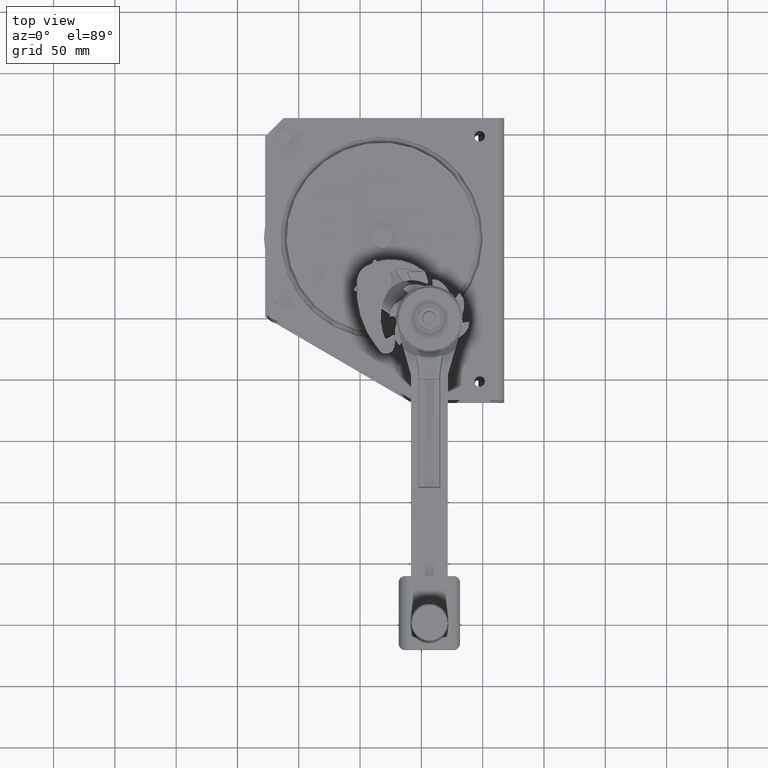
[diagram: clean part render]
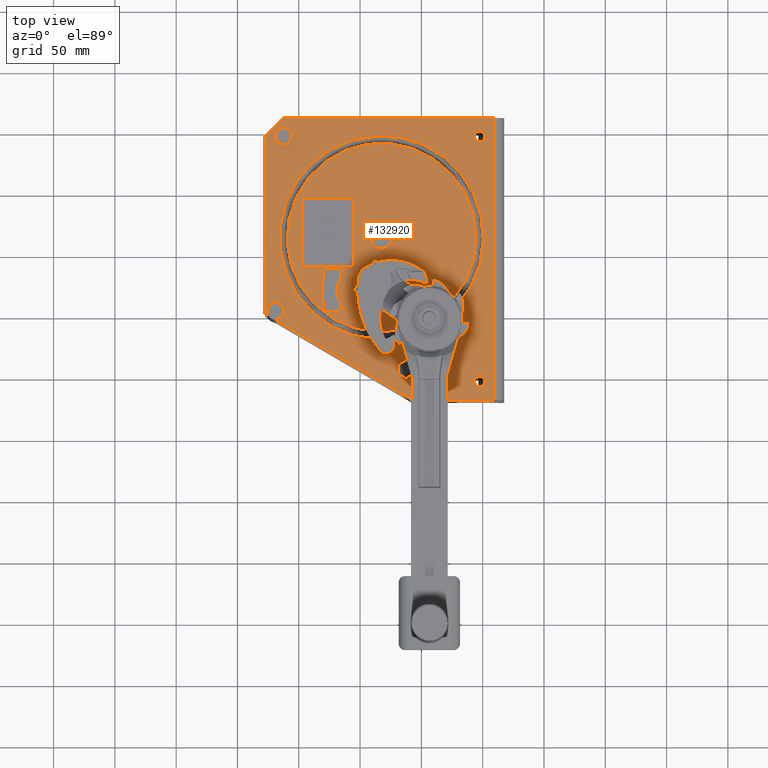
[diagram: same view with one face highlighted and labeled with its STEP entity id]
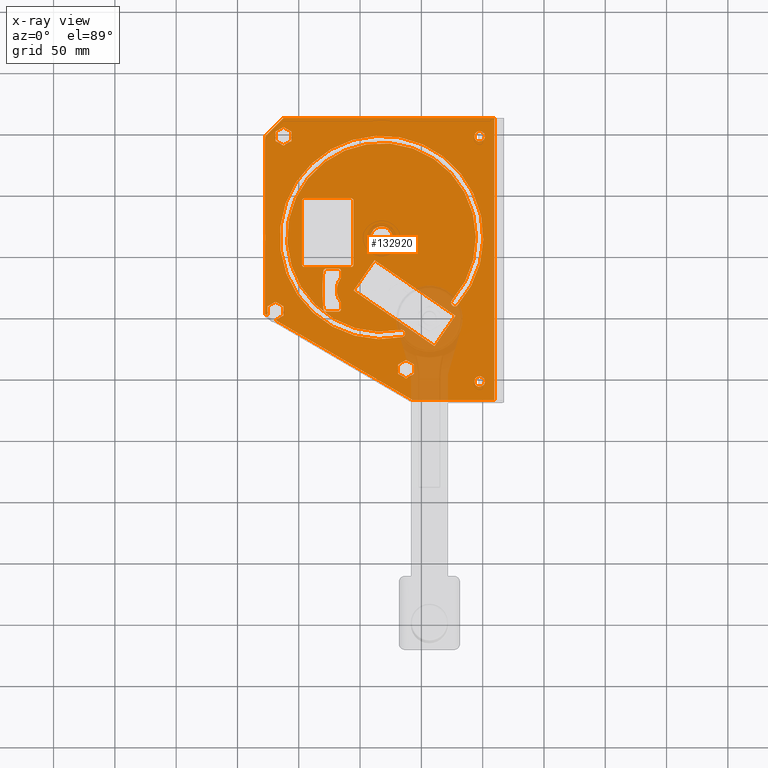
[diagram: x-ray of the same camera — body ghosted, the highlighted face saturated]
A machine part, top view. The second image highlights one B-rep face of the part: STEP entity #132920.
The next image is the same camera in x-ray: the body ghosted, the highlighted face saturated — about 8% of this face is hidden behind the body in this view.
In plain terms, the highlighted planar face has unit normal (0, 0, 1).
Its self-contained STEP definition (entity closure, byte-faithful):
#119940=CARTESIAN_POINT('',(-170.468345091884,-128.418201438849,-25.));
#119950=VERTEX_POINT('',#119940);
#119980=CARTESIAN_POINT('',(-170.468345091884,-128.418201438849,-180.));
#119990=DIRECTION('',(0.,0.,1.));
#120000=VECTOR('',#119990,1.);
#120010=LINE('',#119980,#120000);
#120020=CARTESIAN_POINT('',(-170.468345091884,-128.418201438849,-92.));
#120030=VERTEX_POINT('',#120020);
#120040=EDGE_CURVE('',#120030,#119950,#120010,.T.);
#121800=CARTESIAN_POINT('',(-170.468345091884,-197.165424689116,80.));
#121810=VERTEX_POINT('',#121800);
#121840=CARTESIAN_POINT('',(-170.468345091884,114.896997945725,
620.507971136578));
#121850=DIRECTION('',(0.,-0.5,-0.866025403784439));
#121860=VECTOR('',#121850,1.);
#121870=LINE('',#121840,#121860);
#121880=CARTESIAN_POINT('',(-170.468345091884,-193.436136317757,
86.4593169352704));
#121890=VERTEX_POINT('',#121880);
#121900=EDGE_CURVE('',#121890,#121810,#121870,.T.);
#122560=CARTESIAN_POINT('',(-170.468345091884,-197.251534772182,
92.9999999999998));
#122570=VERTEX_POINT('',#122560);
#124190=CARTESIAN_POINT('',(-170.468345091884,-347.314590512988,93.));
#124200=DIRECTION('',(0.,1.,-3.55008495947735E-16));
#124210=VECTOR('',#124200,1.);
#124220=LINE('',#124190,#124210);
#124230=CARTESIAN_POINT('',(-170.468345091884,-204.670978188582,93.));
#124240=VERTEX_POINT('',#124230);
#124250=EDGE_CURVE('',#124240,#122570,#124220,.T.);
#125190=CARTESIAN_POINT('',(-170.468345091884,-208.423754938314,
86.4999999999999));
#125200=VERTEX_POINT('',#125190);
#125230=CARTESIAN_POINT('',(-170.468345091884,-516.733400823423,
620.507971136578));
#125240=DIRECTION('',(0.,-0.5,0.866025403784439));
#125250=VECTOR('',#125240,1.);
#125260=LINE('',#125230,#125250);
#125270=CARTESIAN_POINT('',(-170.468345091884,-204.670978188582,80.));
#125280=VERTEX_POINT('',#125270);
#125290=EDGE_CURVE('',#125280,#125200,#125260,.T.);
#127090=CARTESIAN_POINT('',(-170.468345091884,-347.314590512988,80.));
#127100=DIRECTION('',(0.,-1.,3.55008495947735E-16));
#127110=VECTOR('',#127100,1.);
#127120=LINE('',#127090,#127110);
#127130=EDGE_CURVE('',#121810,#125280,#127120,.T.);
#128110=CARTESIAN_POINT('',(-170.468345091884,99.885890946795,
620.507971136578));
#128120=DIRECTION('',(0.,0.5,0.866025403784439));
#128130=VECTOR('',#128120,1.);
#128140=LINE('',#128110,#128130);
#128150=EDGE_CURVE('',#125200,#124240,#128140,.T.);
#128370=CARTESIAN_POINT('',(-170.468345091884,-169.166600276766,
-32.3566740944651));
#128380=DIRECTION('',(-1.,-0.,-0.));
#128390=DIRECTION('',(0.,0.,-1.));
#128400=AXIS2_PLACEMENT_3D('',#128370,#128380,#128390);
#128410=PLANE('',#128400);
#128420=CARTESIAN_POINT('',(-170.468345091884,-530.721204492118,
620.507971136578));
#128430=DIRECTION('',(0.,-0.5,0.866025403784439));
#128440=VECTOR('',#128430,1.);
#128450=LINE('',#128420,#128440);
#128460=CARTESIAN_POINT('',(-170.468345091884,-157.170978188582,-26.5));
#128470=VERTEX_POINT('',#128460);
#128480=CARTESIAN_POINT('',(-170.468345091884,-160.923754938314,-20.));
#128490=VERTEX_POINT('',#128480);
#128500=EDGE_CURVE('',#128470,#128490,#128450,.T.);
#128510=ORIENTED_EDGE('',*,*,#128500,.F.);
#128520=CARTESIAN_POINT('',(-170.468345091884,208.87369461549,
620.507971136578));
#128530=DIRECTION('',(0.,0.5,0.866025403784439));
#128540=VECTOR('',#128530,1.);
#128550=LINE('',#128520,#128540);
#128560=CARTESIAN_POINT('',(-170.468345091884,-157.170978188582,-13.5));
#128570=VERTEX_POINT('',#128560);
#128580=EDGE_CURVE('',#128490,#128570,#128550,.T.);
#128590=ORIENTED_EDGE('',*,*,#128580,.F.);
#128600=CARTESIAN_POINT('',(-170.468345091884,-347.314590512988,
-13.4999999999999));
#128610=DIRECTION('',(0.,1.,-3.55008495947735E-16));
#128620=VECTOR('',#128610,1.);
#128630=LINE('',#128600,#128620);
#128640=CARTESIAN_POINT('',(-170.468345091884,-149.665424689116,-13.5));
#128650=VERTEX_POINT('',#128640);
#128660=EDGE_CURVE('',#128570,#128650,#128630,.T.);
#128670=ORIENTED_EDGE('',*,*,#128660,.F.);
#128680=CARTESIAN_POINT('',(-170.468345091884,-515.710097493188,
620.507971136578));
#128690=DIRECTION('',(0.,0.5,-0.866025403784439));
#128700=VECTOR('',#128690,1.);
#128710=LINE('',#128680,#128700);
#128720=CARTESIAN_POINT('',(-170.468345091884,-145.912647939384,
-20.0000000000001));
#128730=VERTEX_POINT('',#128720);
#128740=EDGE_CURVE('',#128650,#128730,#128710,.T.);
#128750=ORIENTED_EDGE('',*,*,#128740,.F.);
#128760=CARTESIAN_POINT('',(-170.468345091884,223.884801614421,
620.507971136578));
#128770=DIRECTION('',(0.,-0.5,-0.866025403784439));
#128780=VECTOR('',#128770,1.);
#128790=LINE('',#128760,#128780);
#128800=CARTESIAN_POINT('',(-170.468345091884,-149.665424689116,-26.5));
#128810=VERTEX_POINT('',#128800);
#128820=EDGE_CURVE('',#128730,#128810,#128790,.T.);
#128830=ORIENTED_EDGE('',*,*,#128820,.F.);
#128840=CARTESIAN_POINT('',(-170.468345091884,-347.314590512988,
-26.4999999999999));
#128850=DIRECTION('',(0.,-1.,3.55008495947735E-16));
#128860=VECTOR('',#128850,1.);
#128870=LINE('',#128840,#128860);
#128880=EDGE_CURVE('',#128810,#128470,#128870,.T.);
#128890=ORIENTED_EDGE('',*,*,#128880,.F.);
#128900=EDGE_LOOP('',(#128890,#128830,#128750,#128670,#128590,#128510));
#128910=FACE_BOUND('',#128900,.T.);
#128920=CARTESIAN_POINT('',(-170.468345091884,-260.918201438849,0.));
#128930=DIRECTION('',(-1.,0.,0.));
#128940=DIRECTION('',(0.,0.,-1.));
#128950=AXIS2_PLACEMENT_3D('',#128920,#128930,#128940);
#128960=CIRCLE('',#128950,9.);
#128970=CARTESIAN_POINT('',(-170.468345091884,-260.918201438849,9.));
#128980=VERTEX_POINT('',#128970);
#128990=CARTESIAN_POINT('',(-170.468345091884,-260.918201438849,-9.));
#129000=VERTEX_POINT('',#128990);
#129010=EDGE_CURVE('',#128980,#129000,#128960,.T.);
#129020=ORIENTED_EDGE('',*,*,#129010,.F.);
#129030=EDGE_CURVE('',#129000,#128980,#128960,.T.);
#129040=ORIENTED_EDGE('',*,*,#129030,.F.);
#129050=EDGE_LOOP('',(#129040,#129020));
#129060=FACE_BOUND('',#129050,.T.);
#129070=CARTESIAN_POINT('',(-170.468345091884,-260.918201438849,0.));
#129080=DIRECTION('',(-1.,0.,0.));
#129090=DIRECTION('',(0.,0.,-1.));
#129100=AXIS2_PLACEMENT_3D('',#129070,#129080,#129090);
#129110=CIRCLE('',#129100,83.);
#129120=CARTESIAN_POINT('',(-170.468345091884,-205.686590010033,
-61.9553799034138));
#129130=VERTEX_POINT('',#129120);
#129140=CARTESIAN_POINT('',(-170.468345091884,-179.647462826969,
-16.8542886375992));
#129150=VERTEX_POINT('',#129140);
#129160=EDGE_CURVE('',#129130,#129150,#129110,.T.);
#129170=ORIENTED_EDGE('',*,*,#129160,.F.);
#129180=CARTESIAN_POINT('',(-170.468345091884,-182.584959403302,
-16.2450974820233));
#129190=DIRECTION('',(-1.,0.,0.));
#129200=DIRECTION('',(0.,0.,-1.));
#129210=AXIS2_PLACEMENT_3D('',#129180,#129190,#129200);
#129220=CIRCLE('',#129210,3.);
#129230=CARTESIAN_POINT('',(-170.468345091884,-185.522455979635,
-15.6359063264474));
#129240=VERTEX_POINT('',#129230);
#129250=EDGE_CURVE('',#129150,#129240,#129220,.T.);
#129260=ORIENTED_EDGE('',*,*,#129250,.F.);
#129270=CARTESIAN_POINT('',(-170.468345091884,-260.918201438849,0.));
#129280=DIRECTION('',(-1.,0.,0.));
#129290=DIRECTION('',(0.,0.,-1.));
#129300=AXIS2_PLACEMENT_3D('',#129270,#129280,#129290);
#129310=CIRCLE('',#129300,77.);
#129320=CARTESIAN_POINT('',(-170.468345091884,-209.679236619345,
-57.4766777417212));
#129330=VERTEX_POINT('',#129320);
#129340=EDGE_CURVE('',#129330,#129240,#129310,.T.);
#129350=ORIENTED_EDGE('',*,*,#129340,.T.);
#129360=CARTESIAN_POINT('',(-170.468345091884,-207.682913314689,
-59.7160288225675));
#129370=DIRECTION('',(-1.,0.,0.));
#129380=DIRECTION('',(0.,0.,-1.));
#129390=AXIS2_PLACEMENT_3D('',#129360,#129370,#129380);
#129400=CIRCLE('',#129390,3.);
#129410=EDGE_CURVE('',#129330,#129130,#129400,.T.);
#129420=ORIENTED_EDGE('',*,*,#129410,.F.);
#129430=EDGE_LOOP('',(#129420,#129350,#129260,#129170));
#129440=FACE_BOUND('',#129430,.T.);
#129450=CARTESIAN_POINT('',(-170.468345091884,-347.314590512988,
-163.552414570162));
#129460=DIRECTION('',(0.,-0.82393487400873,-0.566684500751713));
#129470=VECTOR('',#129460,1.);
#129480=LINE('',#129450,#129470);
#129490=CARTESIAN_POINT('',(-170.468345091884,-172.291263276098,
-43.1751736693352));
#129500=VERTEX_POINT('',#129490);
#129510=CARTESIAN_POINT('',(-170.468345091884,-197.00930949636,
-60.1757086918866));
#129520=VERTEX_POINT('',#129510);
#129530=EDGE_CURVE('',#129500,#129520,#129480,.T.);
#129540=ORIENTED_EDGE('',*,*,#129530,.F.);
#129550=CARTESIAN_POINT('',(-170.468345091884,-665.168751997814,
620.507971136578));
#129560=DIRECTION('',(0.,-0.566684500751713,0.82393487400873));
#129570=VECTOR('',#129560,1.);
#129580=LINE('',#129550,#129570);
#129590=CARTESIAN_POINT('',(-170.468345091884,-242.344069556497,
5.73908122881176));
#129600=VERTEX_POINT('',#129590);
#129610=EDGE_CURVE('',#129520,#129600,#129580,.T.);
#129620=ORIENTED_EDGE('',*,*,#129610,.F.);
#129630=CARTESIAN_POINT('',(-170.468345091884,-347.314590512988,
-66.4573618862374));
#129640=DIRECTION('',(0.,0.82393487400873,0.566684500751713));
#129650=VECTOR('',#129640,1.);
#129660=LINE('',#129630,#129650);
#129670=CARTESIAN_POINT('',(-170.468345091884,-217.626023336235,
22.7396162513631));
#129680=VERTEX_POINT('',#129670);
#129690=EDGE_CURVE('',#129600,#129680,#129660,.T.);
#129700=ORIENTED_EDGE('',*,*,#129690,.F.);
#129710=CARTESIAN_POINT('',(-170.468345091884,-628.758107241342,
620.507971136578));
#129720=DIRECTION('',(0.,0.566684500751713,-0.82393487400873));
#129730=VECTOR('',#129720,1.);
#129740=LINE('',#129710,#129730);
#129750=EDGE_CURVE('',#129680,#129500,#129740,.T.);
#129760=ORIENTED_EDGE('',*,*,#129750,.F.);
#129770=EDGE_LOOP('',(#129760,#129700,#129620,#129540));
#129780=FACE_BOUND('',#129770,.T.);
#129790=CARTESIAN_POINT('',(-170.468345091884,-343.418201438849,-80.));
#129800=DIRECTION('',(-1.,0.,0.));
#129810=DIRECTION('',(0.,0.,-1.));
#129820=AXIS2_PLACEMENT_3D('',#129790,#129800,#129810);
#129830=CIRCLE('',#129820,4.25);
#129840=CARTESIAN_POINT('',(-170.468345091884,-343.418201438849,-75.75))
;
#129850=VERTEX_POINT('',#129840);
#129860=CARTESIAN_POINT('',(-170.468345091884,-343.418201438849,-84.25))
;
#129870=VERTEX_POINT('',#129860);
#129880=EDGE_CURVE('',#129850,#129870,#129830,.T.);
#129890=ORIENTED_EDGE('',*,*,#129880,.F.);
#129900=EDGE_CURVE('',#129870,#129850,#129830,.T.);
#129910=ORIENTED_EDGE('',*,*,#129900,.F.);
#129920=EDGE_LOOP('',(#129910,#129890));
#129930=FACE_BOUND('',#129920,.T.);
#129940=CARTESIAN_POINT('',(-170.468345091884,-347.314590512988,73.5));
#129950=DIRECTION('',(0.,-1.,3.55008495947735E-16));
#129960=VECTOR('',#129950,1.);
#129970=LINE('',#129940,#129960);
#129980=CARTESIAN_POINT('',(-170.468345091884,-339.665424689116,73.5));
#129990=VERTEX_POINT('',#129980);
#130000=CARTESIAN_POINT('',(-170.468345091884,-347.170978188582,73.5));
#130010=VERTEX_POINT('',#130000);
#130020=EDGE_CURVE('',#129990,#130010,#129970,.T.);
#130030=ORIENTED_EDGE('',*,*,#130020,.F.);
#130040=CARTESIAN_POINT('',(-170.468345091884,-662.986177573156,
620.507971136578));
#130050=DIRECTION('',(0.,-0.5,0.866025403784439));
#130060=VECTOR('',#130050,1.);
#130070=LINE('',#130040,#130060);
#130080=CARTESIAN_POINT('',(-170.468345091884,-350.923754938314,
79.9999999999999));
#130090=VERTEX_POINT('',#130080);
#130100=EDGE_CURVE('',#130010,#130090,#130070,.T.);
#130110=ORIENTED_EDGE('',*,*,#130100,.F.);
#130120=CARTESIAN_POINT('',(-170.468345091884,-38.8613323034725,
620.507971136578));
#130130=DIRECTION('',(0.,0.5,0.866025403784439));
#130140=VECTOR('',#130130,1.);
#130150=LINE('',#130120,#130140);
#130160=CARTESIAN_POINT('',(-170.468345091884,-347.170978188582,86.5));
#130170=VERTEX_POINT('',#130160);
#130180=EDGE_CURVE('',#130090,#130170,#130150,.T.);
#130190=ORIENTED_EDGE('',*,*,#130180,.F.);
#130200=CARTESIAN_POINT('',(-170.468345091884,-347.314590512988,86.5));
#130210=DIRECTION('',(0.,1.,-3.55008495947735E-16));
#130220=VECTOR('',#130210,1.);
#130230=LINE('',#130200,#130220);
#130240=CARTESIAN_POINT('',(-170.468345091884,-339.665424689116,86.5));
#130250=VERTEX_POINT('',#130240);
#130260=EDGE_CURVE('',#130170,#130250,#130230,.T.);
#130270=ORIENTED_EDGE('',*,*,#130260,.F.);
#130280=CARTESIAN_POINT('',(-170.468345091884,-647.975070574225,
620.507971136578));
#130290=DIRECTION('',(0.,0.5,-0.866025403784439));
#130300=VECTOR('',#130290,1.);
#130310=LINE('',#130280,#130300);
#130320=CARTESIAN_POINT('',(-170.468345091884,-335.912647939384,80.));
#130330=VERTEX_POINT('',#130320);
#130340=EDGE_CURVE('',#130250,#130330,#130310,.T.);
#130350=ORIENTED_EDGE('',*,*,#130340,.F.);
#130360=CARTESIAN_POINT('',(-170.468345091884,-23.850225304542,
620.507971136578));
#130370=DIRECTION('',(0.,-0.5,-0.866025403784439));
#130380=VECTOR('',#130370,1.);
#130390=LINE('',#130360,#130380);
#130400=EDGE_CURVE('',#130330,#129990,#130390,.T.);
#130410=ORIENTED_EDGE('',*,*,#130400,.F.);
#130420=EDGE_LOOP('',(#130410,#130350,#130270,#130190,#130110,#130030));
#130430=FACE_BOUND('',#130420,.T.);
#130440=ORIENTED_EDGE('',*,*,#120040,.F.);
#130450=CARTESIAN_POINT('',(-170.468345091884,-198.418201438849,95.));
#130460=DIRECTION('',(0.,0.503871025524086,-0.863778900898434));
#130470=VECTOR('',#130460,1.);
#130480=LINE('',#130450,#130470);
#130490=EDGE_CURVE('',#121890,#119950,#130480,.T.);
#130500=ORIENTED_EDGE('',*,*,#130490,.T.);
#130510=ORIENTED_EDGE('',*,*,#121900,.F.);
#130520=ORIENTED_EDGE('',*,*,#127130,.F.);
#130530=ORIENTED_EDGE('',*,*,#125290,.F.);
#130540=ORIENTED_EDGE('',*,*,#128150,.F.);
#130550=ORIENTED_EDGE('',*,*,#124250,.F.);
#130560=CARTESIAN_POINT('',(-170.468345091884,-198.418201438849,
94.9999999999997));
#130570=VERTEX_POINT('',#130560);
#130580=EDGE_CURVE('',#130570,#122570,#130480,.T.);
#130590=ORIENTED_EDGE('',*,*,#130580,.T.);
#130600=CARTESIAN_POINT('',(-170.468345091884,-343.418201438849,95.));
#130610=DIRECTION('',(0.,1.,0.));
#130620=VECTOR('',#130610,1.);
#130630=LINE('',#130600,#130620);
#130640=CARTESIAN_POINT('',(-170.468345091884,-343.418201438849,95.));
#130650=VERTEX_POINT('',#130640);
#130660=EDGE_CURVE('',#130650,#130570,#130630,.T.);
#130670=ORIENTED_EDGE('',*,*,#130660,.T.);
#130680=CARTESIAN_POINT('',(-170.468345091884,-343.418201438849,95.));
#130690=DIRECTION('',(0.,-0.707106781186548,-0.707106781186548));
#130700=VECTOR('',#130690,1.);
#130710=LINE('',#130680,#130700);
#130720=CARTESIAN_POINT('',(-170.468345091884,-358.418201438849,80.));
#130730=VERTEX_POINT('',#130720);
#130740=EDGE_CURVE('',#130650,#130730,#130710,.T.);
#130750=ORIENTED_EDGE('',*,*,#130740,.F.);
#130760=CARTESIAN_POINT('',(-170.468345091884,-358.418201438849,80.));
#130770=DIRECTION('',(0.,0.,-1.));
#130780=VECTOR('',#130770,1.);
#130790=LINE('',#130760,#130780);
#130800=CARTESIAN_POINT('',(-170.468345091884,-358.418201438849,-92.));
#130810=VERTEX_POINT('',#130800);
#130820=EDGE_CURVE('',#130730,#130810,#130790,.T.);
#130830=ORIENTED_EDGE('',*,*,#130820,.F.);
#130840=CARTESIAN_POINT('',(-170.468345091884,-347.314590512988,-92.));
#130850=DIRECTION('',(0.,-1.,0.));
#130860=VECTOR('',#130850,1.);
#130870=LINE('',#130840,#130860);
#130880=EDGE_CURVE('',#120030,#130810,#130870,.T.);
#130890=ORIENTED_EDGE('',*,*,#130880,.T.);
#130900=EDGE_LOOP('',(#130890,#130830,#130750,#130670,#130590,#130550,
#130540,#130530,#130520,#130510,#130500,#130440));
#130910=FACE_OUTER_BOUND('',#130900,.T.);
#130920=CARTESIAN_POINT('',(-170.468345091884,-143.418201438849,-80.));
#130930=DIRECTION('',(-1.,0.,0.));
#130940=DIRECTION('',(0.,0.,-1.));
#130950=AXIS2_PLACEMENT_3D('',#130920,#130930,#130940);
#130960=CIRCLE('',#130950,4.25);
#130970=CARTESIAN_POINT('',(-170.468345091884,-143.418201438849,-75.75))
;
#130980=VERTEX_POINT('',#130970);
#130990=CARTESIAN_POINT('',(-170.468345091884,-143.418201438849,-84.25))
;
#131000=VERTEX_POINT('',#130990);
#131010=EDGE_CURVE('',#130980,#131000,#130960,.T.);
#131020=ORIENTED_EDGE('',*,*,#131010,.F.);
#131030=EDGE_CURVE('',#131000,#130980,#130960,.T.);
#131040=ORIENTED_EDGE('',*,*,#131030,.F.);
#131050=EDGE_LOOP('',(#131040,#131020));
#131060=FACE_BOUND('',#131050,.T.);
#131070=CARTESIAN_POINT('',(-170.468345091884,0.,22.8706771463028));
#131080=DIRECTION('',(0.,-1.,7.7715611723761E-16));
#131090=VECTOR('',#131080,1.);
#131100=LINE('',#131070,#131090);
#131110=CARTESIAN_POINT('',(-170.468345091884,-238.882809704928,
22.870677146303));
#131120=VERTEX_POINT('',#131110);
#131130=CARTESIAN_POINT('',(-170.468345091884,-290.882809704928,
22.8706771463031));
#131140=VERTEX_POINT('',#131130);
#131150=EDGE_CURVE('',#131120,#131140,#131100,.T.);
#131160=ORIENTED_EDGE('',*,*,#131150,.F.);
#131170=CARTESIAN_POINT('',(-170.468345091884,-290.882809704928,
24.8706771463031));
#131180=DIRECTION('',(-1.,-1.17755929470743E-16,3.52818340432267E-17));
#131190=DIRECTION('',(3.52818340432266E-17,7.21644966006352E-16,1.));
#131200=AXIS2_PLACEMENT_3D('',#131170,#131180,#131190);
#131210=CIRCLE('',#131200,2.);
#131220=CARTESIAN_POINT('',(-170.468345091884,-292.882809704928,
24.8706771463031));
#131230=VERTEX_POINT('',#131220);
#131240=EDGE_CURVE('',#131140,#131230,#131210,.T.);
#131250=ORIENTED_EDGE('',*,*,#131240,.F.);
#131260=CARTESIAN_POINT('',(-170.468345091884,-292.882809704928,0.));
#131270=DIRECTION('',(0.,-7.21644966006352E-16,-1.));
#131280=VECTOR('',#131270,1.);
#131290=LINE('',#131260,#131280);
#131300=CARTESIAN_POINT('',(-170.468345091884,-292.882809704928,
62.870677146303));
#131310=VERTEX_POINT('',#131300);
#131320=EDGE_CURVE('',#131310,#131230,#131290,.T.);
#131330=ORIENTED_EDGE('',*,*,#131320,.T.);
#131340=CARTESIAN_POINT('',(-170.468345091884,-290.882809704928,
62.870677146303));
#131350=DIRECTION('',(1.,1.17755929470743E-16,-3.52818340432267E-17));
#131360=DIRECTION('',(-3.52818340432266E-17,-7.21644966006352E-16,-1.));
#131370=AXIS2_PLACEMENT_3D('',#131340,#131350,#131360);
#131380=CIRCLE('',#131370,2.);
#131390=CARTESIAN_POINT('',(-170.468345091884,-290.882809704928,
64.870677146303));
#131400=VERTEX_POINT('',#131390);
#131410=EDGE_CURVE('',#131400,#131310,#131380,.T.);
#131420=ORIENTED_EDGE('',*,*,#131410,.T.);
#131430=CARTESIAN_POINT('',(-170.468345091884,0.,64.8706771463032));
#131440=DIRECTION('',(0.,1.,5.55111512312578E-16));
#131450=VECTOR('',#131440,1.);
#131460=LINE('',#131430,#131450);
#131470=CARTESIAN_POINT('',(-170.468345091884,-238.882809704928,
64.870677146303));
#131480=VERTEX_POINT('',#131470);
#131490=EDGE_CURVE('',#131400,#131480,#131460,.T.);
#131500=ORIENTED_EDGE('',*,*,#131490,.F.);
#131510=CARTESIAN_POINT('',(-170.468345091884,-238.882809704928,
62.870677146303));
#131520=DIRECTION('',(1.,1.17755929470743E-16,-3.52818340432267E-17));
#131530=DIRECTION('',(-3.52818340432266E-17,-7.21644966006352E-16,-1.));
#131540=AXIS2_PLACEMENT_3D('',#131510,#131520,#131530);
#131550=CIRCLE('',#131540,2.);
#131560=CARTESIAN_POINT('',(-170.468345091884,-236.882809704928,
62.870677146303));
#131570=VERTEX_POINT('',#131560);
#131580=EDGE_CURVE('',#131570,#131480,#131550,.T.);
#131590=ORIENTED_EDGE('',*,*,#131580,.T.);
#131600=CARTESIAN_POINT('',(-170.468345091884,-236.882809704928,0.));
#131610=DIRECTION('',(0.,-1.66533453693773E-16,-1.));
#131620=VECTOR('',#131610,1.);
#131630=LINE('',#131600,#131620);
#131640=CARTESIAN_POINT('',(-170.468345091884,-236.882809704928,
24.870677146303));
#131650=VERTEX_POINT('',#131640);
#131660=EDGE_CURVE('',#131570,#131650,#131630,.T.);
#131670=ORIENTED_EDGE('',*,*,#131660,.F.);
#131680=CARTESIAN_POINT('',(-170.468345091884,-238.882809704928,
24.870677146303));
#131690=DIRECTION('',(1.,1.17755929470743E-16,-3.52818340432267E-17));
#131700=DIRECTION('',(-3.52818340432266E-17,-7.21644966006352E-16,-1.));
#131710=AXIS2_PLACEMENT_3D('',#131680,#131690,#131700);
#131720=CIRCLE('',#131710,2.);
#131730=EDGE_CURVE('',#131120,#131650,#131720,.T.);
#131740=ORIENTED_EDGE('',*,*,#131730,.T.);
#131750=EDGE_LOOP('',(#131740,#131670,#131590,#131500,#131420,#131330,
#131250,#131160));
#131760=FACE_BOUND('',#131750,.T.);
#131770=CARTESIAN_POINT('',(-170.468345091884,-217.510222251764,
-116.445635685855));
#131780=DIRECTION('',(-1.,0.,2.73691106313441E-48));
#131790=DIRECTION('',(0.,-1.,0.));
#131800=AXIS2_PLACEMENT_3D('',#131770,#131780,#131790);
#131810=CIRCLE('',#131800,164.541232103691);
#131820=CARTESIAN_POINT('',(-170.468345091884,-217.943680607039,
48.0950254774424));
#131830=VERTEX_POINT('',#131820);
#131840=CARTESIAN_POINT('',(-170.468345091884,-202.252113032295,
47.3866174429095));
#131850=VERTEX_POINT('',#131840);
#131860=EDGE_CURVE('',#131830,#131850,#131810,.T.);
#131870=ORIENTED_EDGE('',*,*,#131860,.F.);
#131880=CARTESIAN_POINT('',(-170.468345091884,-202.443680607077,
45.3958131169417));
#131890=DIRECTION('',(-1.,0.,2.73691106313441E-48));
#131900=DIRECTION('',(0.,-1.,0.));
#131910=AXIS2_PLACEMENT_3D('',#131880,#131890,#131900);
#131920=CIRCLE('',#131910,1.99999999999999);
#131930=CARTESIAN_POINT('',(-170.468345091884,-200.443680607077,
45.3958131169418));
#131940=VERTEX_POINT('',#131930);
#131950=EDGE_CURVE('',#131850,#131940,#131920,.T.);
#131960=ORIENTED_EDGE('',*,*,#131950,.F.);
#131970=CARTESIAN_POINT('',(-170.468345091884,-200.443680607077,0.));
#131980=DIRECTION('',(0.,0.,1.));
#131990=VECTOR('',#131980,1.);
#132000=LINE('',#131970,#131990);
#132010=CARTESIAN_POINT('',(-170.468345091884,-200.443680607077,
35.0945806437161));
#132020=VERTEX_POINT('',#132010);
#132030=EDGE_CURVE('',#132020,#131940,#132000,.T.);
#132040=ORIENTED_EDGE('',*,*,#132030,.T.);
#132050=CARTESIAN_POINT('',(-170.468345091884,-202.443680607077,
35.0945806437161));
#132060=DIRECTION('',(-1.,0.,2.73691106313441E-48));
#132070=DIRECTION('',(0.,-1.,0.));
#132080=AXIS2_PLACEMENT_3D('',#132050,#132060,#132070);
#132090=CIRCLE('',#132080,2.);
#132100=CARTESIAN_POINT('',(-170.468345091884,-202.443680607077,
33.0945806437161));
#132110=VERTEX_POINT('',#132100);
#132120=EDGE_CURVE('',#132020,#132110,#132090,.T.);
#132130=ORIENTED_EDGE('',*,*,#132120,.F.);
#132140=CARTESIAN_POINT('',(-170.468345091884,0.,33.0945806437163));
#132150=DIRECTION('',(0.,1.,1.2512307166843E-15));
#132160=VECTOR('',#132150,1.);
#132170=LINE('',#132140,#132160);
#132180=CARTESIAN_POINT('',(-170.468345091884,-207.390404884025,
33.0945806437161));
#132190=VERTEX_POINT('',#132180);
#132200=EDGE_CURVE('',#132190,#132110,#132170,.T.);
#132210=ORIENTED_EDGE('',*,*,#132200,.T.);
#132220=CARTESIAN_POINT('',(-170.468345091884,-207.390404884025,
35.0945806437161));
#132230=DIRECTION('',(-1.,0.,2.73691106313441E-48));
#132240=DIRECTION('',(0.,-1.,0.));
#132250=AXIS2_PLACEMENT_3D('',#132220,#132230,#132240);
#132260=CIRCLE('',#132250,2.);
#132270=CARTESIAN_POINT('',(-170.468345091884,-208.562991075476,
33.4743826238369));
#132280=VERTEX_POINT('',#132270);
#132290=EDGE_CURVE('',#132190,#132280,#132260,.T.);
#132300=ORIENTED_EDGE('',*,*,#132290,.F.);
#132310=CARTESIAN_POINT('',(-170.468345091884,-217.943680607078,
20.5127984648039));
#132320=DIRECTION('',(-1.,0.,2.73691106313441E-48));
#132330=DIRECTION('',(0.,-1.,0.));
#132340=AXIS2_PLACEMENT_3D('',#132310,#132320,#132330);
#132350=CIRCLE('',#132340,16.);
#132360=CARTESIAN_POINT('',(-170.468345091884,-227.324370138679,
33.4743826238369));
#132370=VERTEX_POINT('',#132360);
#132380=EDGE_CURVE('',#132370,#132280,#132350,.T.);
#132390=ORIENTED_EDGE('',*,*,#132380,.T.);
#132400=CARTESIAN_POINT('',(-170.468345091884,-228.49695633013,
35.0945806437161));
#132410=DIRECTION('',(-1.,0.,2.73691106313441E-48));
#132420=DIRECTION('',(0.,-1.,0.));
#132430=AXIS2_PLACEMENT_3D('',#132400,#132410,#132420);
#132440=CIRCLE('',#132430,2.00000000000002);
#132450=CARTESIAN_POINT('',(-170.468345091884,-228.49695633013,
33.094580643716));
#132460=VERTEX_POINT('',#132450);
#132470=EDGE_CURVE('',#132370,#132460,#132440,.T.);
#132480=ORIENTED_EDGE('',*,*,#132470,.F.);
#132490=CARTESIAN_POINT('',(-170.468345091884,0.,33.0945806437159));
#132500=DIRECTION('',(0.,1.,-6.28420808379588E-16));
#132510=VECTOR('',#132500,1.);
#132520=LINE('',#132490,#132510);
#132530=CARTESIAN_POINT('',(-170.468345091884,-233.443680607077,
33.0945806437161));
#132540=VERTEX_POINT('',#132530);
#132550=EDGE_CURVE('',#132540,#132460,#132520,.T.);
#132560=ORIENTED_EDGE('',*,*,#132550,.T.);
#132570=CARTESIAN_POINT('',(-170.468345091884,-233.443680607077,
35.0945806437161));
#132580=DIRECTION('',(-1.,0.,2.73691106313441E-48));
#132590=DIRECTION('',(0.,-1.,0.));
#132600=AXIS2_PLACEMENT_3D('',#132570,#132580,#132590);
#132610=CIRCLE('',#132600,2.);
#132620=CARTESIAN_POINT('',(-170.468345091884,-235.443680607077,
35.0945806437161));
#132630=VERTEX_POINT('',#132620);
#132640=EDGE_CURVE('',#132540,#132630,#132610,.T.);
#132650=ORIENTED_EDGE('',*,*,#132640,.F.);
#132660=CARTESIAN_POINT('',(-170.468345091884,-235.443680607077,0.));
#132670=DIRECTION('',(0.,0.,-1.));
#132680=VECTOR('',#132670,1.);
#132690=LINE('',#132660,#132680);
#132700=CARTESIAN_POINT('',(-170.468345091884,-235.443680607077,
45.4085601823583));
#132710=VERTEX_POINT('',#132700);
#132720=EDGE_CURVE('',#132710,#132630,#132690,.T.);
#132730=ORIENTED_EDGE('',*,*,#132720,.T.);
#132740=CARTESIAN_POINT('',(-170.468345091884,-233.443680607077,
45.4085601823583));
#132750=DIRECTION('',(-1.,0.,2.73691106313441E-48));
#132760=DIRECTION('',(0.,-1.,0.));
#132770=AXIS2_PLACEMENT_3D('',#132740,#132750,#132760);
#132780=CIRCLE('',#132770,2.);
#132790=CARTESIAN_POINT('',(-170.468345091884,-233.633497976244,
47.399532147596));
#132800=VERTEX_POINT('',#132790);
#132810=EDGE_CURVE('',#132710,#132800,#132780,.T.);
#132820=ORIENTED_EDGE('',*,*,#132810,.F.);
#132830=CARTESIAN_POINT('',(-170.468345091884,-218.510222251764,
-116.447321913484));
#132840=DIRECTION('',(-1.,0.,2.73691106313441E-48));
#132850=DIRECTION('',(0.,-1.,0.));
#132860=AXIS2_PLACEMENT_3D('',#132830,#132840,#132850);
#132870=CIRCLE('',#132860,164.543322727942);
#132880=EDGE_CURVE('',#132800,#131830,#132870,.T.);
#132890=ORIENTED_EDGE('',*,*,#132880,.F.);
#132900=EDGE_LOOP('',(#132890,#132820,#132730,#132650,#132560,#132480,
#132390,#132300,#132210,#132130,#132040,#131960,#131870));
#132910=FACE_BOUND('',#132900,.T.);
#132920=ADVANCED_FACE('',(#128910,#129060,#129440,#129780,#129930,
#130430,#130910,#131060,#131760,#132910),#128410,.T.);